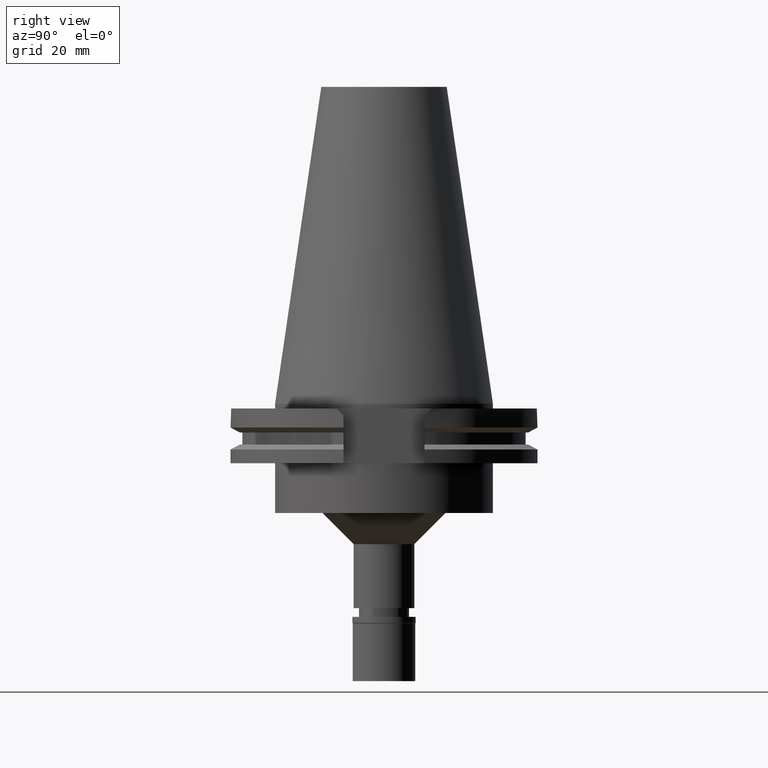
[diagram: clean part render]
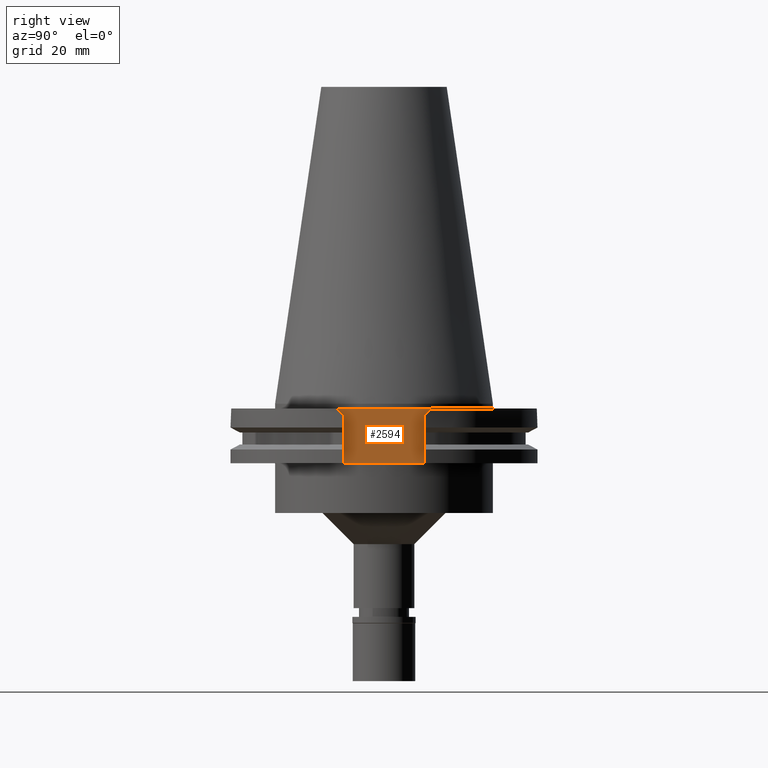
[diagram: same view with one face highlighted and labeled with its STEP entity id]
A machine part, right view. The second image highlights one B-rep face of the part: STEP entity #2594.
In plain terms, the highlighted planar face has unit normal (1, 0, 0).
Its self-contained STEP definition (entity closure, byte-faithful):
#2 = DIRECTION ( 'NONE',  ( 0.0000000000000000000, -1.000000000000000000, 0.0000000000000000000 ) ) ;
#32 = ORIENTED_EDGE ( 'NONE', *, *, #3137, .F. ) ;
#98 = ORIENTED_EDGE ( 'NONE', *, *, #1005, .T. ) ;
#100 = ORIENTED_EDGE ( 'NONE', *, *, #2871, .F. ) ;
#123 = VERTEX_POINT ( 'NONE', #3279 ) ;
#268 = LINE ( 'NONE', #1273, #2174 ) ;
#518 = CARTESIAN_POINT ( 'NONE',  ( 35.27000000000000313, -12.95500000000000007, -19.05000000000000071 ) ) ;
#531 = LINE ( 'NONE', #2519, #1604 ) ;
#533 = DIRECTION ( 'NONE',  ( 0.0000000000000000000, 0.0000000000000000000, 1.000000000000000000 ) ) ;
#554 = DIRECTION ( 'NONE',  ( 0.0000000000000000000, 0.0000000000000000000, -1.000000000000000000 ) ) ;
#627 = CARTESIAN_POINT ( 'NONE',  ( 35.27000000000000313, -12.95500000000000007, -3.700000000000000178 ) ) ;
#666 = LINE ( 'NONE', #627, #1067 ) ;
#850 = CARTESIAN_POINT ( 'NONE',  ( 35.27000000000000313, 15.15499999999999936, -1.500000000000000000 ) ) ;
#886 = CARTESIAN_POINT ( 'NONE',  ( 35.27000000000000313, 12.95500000000000007, -3.700000000000000178 ) ) ;
#917 = VERTEX_POINT ( 'NONE', #1752 ) ;
#1005 = EDGE_CURVE ( 'NONE', #2757, #1297, #268, .T. ) ;
#1067 = VECTOR ( 'NONE', #2739, 1000.000000000000114 ) ;
#1273 = CARTESIAN_POINT ( 'NONE',  ( 35.27000000000000313, 15.15499999999999936, -1.500000000000000000 ) ) ;
#1297 = VERTEX_POINT ( 'NONE', #2635 ) ;
#1316 = CARTESIAN_POINT ( 'NONE',  ( 35.27000000000000313, 12.95500000000000007, -3.700000000000000178 ) ) ;
#1427 = PLANE ( 'NONE',  #2308 ) ;
#1518 = EDGE_CURVE ( 'NONE', #2393, #123, #1790, .T. ) ;
#1604 = VECTOR ( 'NONE', #3303, 1000.000000000000114 ) ;
#1639 = DIRECTION ( 'NONE',  ( 0.0000000000000000000, 1.000000000000000000, 0.0000000000000000000 ) ) ;
#1752 = CARTESIAN_POINT ( 'NONE',  ( 35.27000000000000313, 12.95500000000000007, -19.05000000000000071 ) ) ;
#1775 = VERTEX_POINT ( 'NONE', #1316 ) ;
#1790 = LINE ( 'NONE', #518, #2487 ) ;
#1811 = DIRECTION ( 'NONE',  ( 0.0000000000000000000, -1.000000000000000000, 0.0000000000000000000 ) ) ;
#2060 = CARTESIAN_POINT ( 'NONE',  ( 35.27000000000000313, 12.95500000000000007, -19.05000000000000071 ) ) ;
#2155 = CARTESIAN_POINT ( 'NONE',  ( 35.27000000000000313, 0.0000000000000000000, 0.0000000000000000000 ) ) ;
#2174 = VECTOR ( 'NONE', #2, 1000.000000000000000 ) ;
#2210 = EDGE_CURVE ( 'NONE', #917, #2393, #2295, .T. ) ;
#2295 = LINE ( 'NONE', #2060, #2621 ) ;
#2308 = AXIS2_PLACEMENT_3D ( 'NONE', #2155, #2659, #1639 ) ;
#2379 = ORIENTED_EDGE ( 'NONE', *, *, #1518, .F. ) ;
#2393 = VERTEX_POINT ( 'NONE', #2595 ) ;
#2487 = VECTOR ( 'NONE', #533, 1000.000000000000000 ) ;
#2519 = CARTESIAN_POINT ( 'NONE',  ( 35.27000000000000313, 15.15499999999999936, -1.500000000000000000 ) ) ;
#2594 = ADVANCED_FACE ( 'NONE', ( #2699 ), #1427, .T. ) ;
#2595 = CARTESIAN_POINT ( 'NONE',  ( 35.27000000000000313, -12.95500000000000007, -19.05000000000000071 ) ) ;
#2621 = VECTOR ( 'NONE', #1811, 1000.000000000000000 ) ;
#2635 = CARTESIAN_POINT ( 'NONE',  ( 35.27000000000000313, -15.15499999999999936, -1.500000000000000000 ) ) ;
#2659 = DIRECTION ( 'NONE',  ( 1.000000000000000000, 0.0000000000000000000, 0.0000000000000000000 ) ) ;
#2699 = FACE_OUTER_BOUND ( 'NONE', #3161, .T. ) ;
#2739 = DIRECTION ( 'NONE',  ( 0.0000000000000000000, -0.7071067811865474617, 0.7071067811865474617 ) ) ;
#2757 = VERTEX_POINT ( 'NONE', #850 ) ;
#2843 = VECTOR ( 'NONE', #554, 1000.000000000000000 ) ;
#2869 = ORIENTED_EDGE ( 'NONE', *, *, #2210, .F. ) ;
#2871 = EDGE_CURVE ( 'NONE', #1775, #917, #2901, .T. ) ;
#2901 = LINE ( 'NONE', #886, #2843 ) ;
#3031 = EDGE_CURVE ( 'NONE', #123, #1297, #666, .T. ) ;
#3137 = EDGE_CURVE ( 'NONE', #2757, #1775, #531, .T. ) ;
#3161 = EDGE_LOOP ( 'NONE', ( #100, #32, #98, #3201, #2379, #2869 ) ) ;
#3201 = ORIENTED_EDGE ( 'NONE', *, *, #3031, .F. ) ;
#3279 = CARTESIAN_POINT ( 'NONE',  ( 35.27000000000000313, -12.95500000000000007, -3.700000000000000178 ) ) ;
#3303 = DIRECTION ( 'NONE',  ( 0.0000000000000000000, -0.7071067811865474617, -0.7071067811865474617 ) ) ;